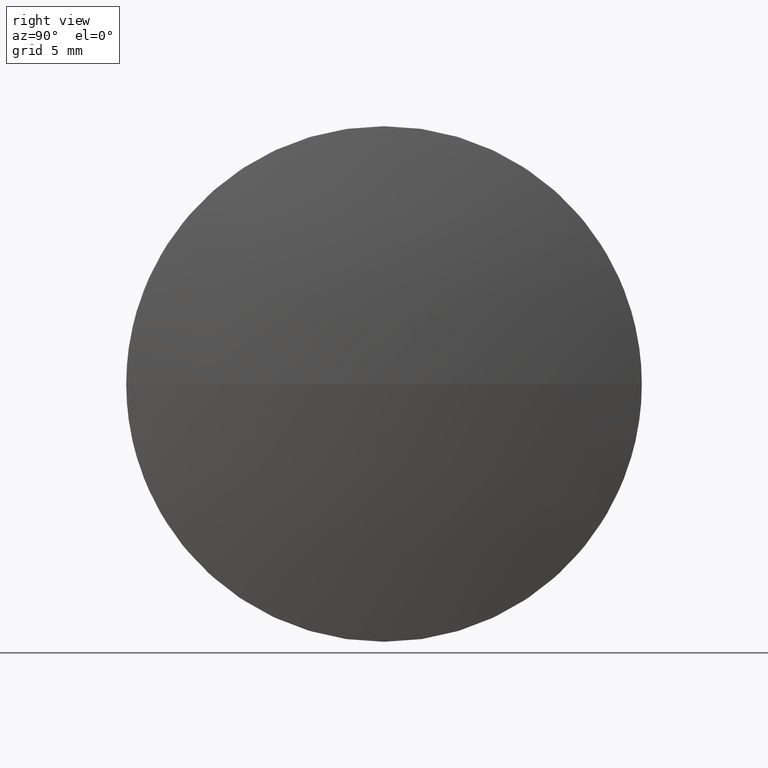
[diagram: clean part render]
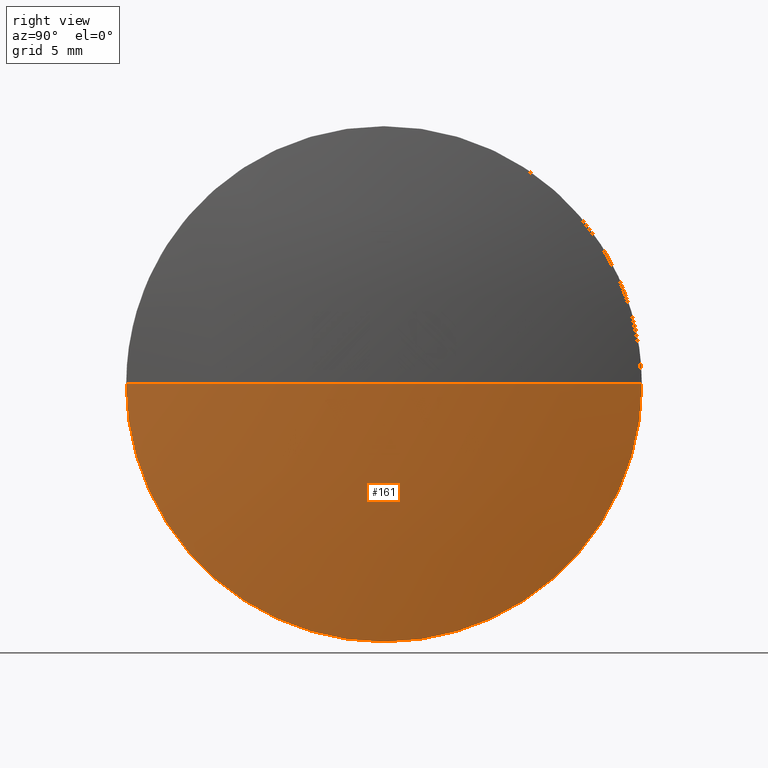
[diagram: same view with one face highlighted and labeled with its STEP entity id]
A machine part, right view. The second image highlights one B-rep face of the part: STEP entity #161.
In plain terms, the highlighted spherical surface has radius 103.539 mm.
Its self-contained STEP definition (entity closure, byte-faithful):
#3 = EDGE_LOOP ( 'NONE', ( #80, #157, #125, #52 ) ) ;
#5 = VERTEX_POINT ( 'NONE', #97 ) ;
#6 = CIRCLE ( 'NONE', #106, 20.00000000000000400 ) ;
#7 = EDGE_CURVE ( 'NONE', #5, #119, #6, .T. ) ;
#26 = DIRECTION ( 'NONE',  ( 0.0000000000000000000, 0.0000000000000000000, 1.000000000000000000 ) ) ;
#27 = DIRECTION ( 'NONE',  ( 0.0000000000000000000, 1.000000000000000000, 1.224646799147353000E-016 ) ) ;
#28 = EDGE_CURVE ( 'NONE', #119, #180, #81, .T. ) ;
#34 = EDGE_CURVE ( 'NONE', #174, #5, #37, .T. ) ;
#37 = CIRCLE ( 'NONE', #172, 103.5391025641022100 ) ;
#40 = AXIS2_PLACEMENT_3D ( 'NONE', #164, #109, #150 ) ;
#45 = CARTESIAN_POINT ( 'NONE',  ( 299.6750735635678200, 121.7145890969490300, 0.0000000000000000000 ) ) ;
#52 = ORIENTED_EDGE ( 'NONE', *, *, #7, .F. ) ;
#57 = EDGE_CURVE ( 'NONE', #174, #180, #186, .T. ) ;
#64 = AXIS2_PLACEMENT_3D ( 'NONE', #45, #118, #27 ) ;
#67 = AXIS2_PLACEMENT_3D ( 'NONE', #103, #132, #26 ) ;
#79 = CARTESIAN_POINT ( 'NONE',  ( 401.2641761276700000, 101.7145890969490300, -2.449293598294708100E-015 ) ) ;
#80 = ORIENTED_EDGE ( 'NONE', *, *, #34, .F. ) ;
#81 = CIRCLE ( 'NONE', #67, 20.00000000000000400 ) ;
#97 = CARTESIAN_POINT ( 'NONE',  ( 401.2641761276700000, 141.7145890969490600, 0.0000000000000000000 ) ) ;
#103 = CARTESIAN_POINT ( 'NONE',  ( 401.2641761276700000, 121.7145890969490300, 0.0000000000000000000 ) ) ;
#106 = AXIS2_PLACEMENT_3D ( 'NONE', #141, #178, #130 ) ;
#109 = DIRECTION ( 'NONE',  ( -0.0000000000000000000, 0.0000000000000000000, -1.000000000000000000 ) ) ;
#117 = DIRECTION ( 'NONE',  ( -0.0000000000000000000, 0.0000000000000000000, 1.000000000000000000 ) ) ;
#118 = DIRECTION ( 'NONE',  ( 0.0000000000000000000, 1.224646799147353200E-016, -1.000000000000000000 ) ) ;
#119 = VERTEX_POINT ( 'NONE', #166 ) ;
#125 = ORIENTED_EDGE ( 'NONE', *, *, #28, .F. ) ;
#130 = DIRECTION ( 'NONE',  ( 0.0000000000000000000, 0.0000000000000000000, 1.000000000000000000 ) ) ;
#131 = DIRECTION ( 'NONE',  ( 1.000000000000000000, 0.0000000000000000000, 0.0000000000000000000 ) ) ;
#132 = DIRECTION ( 'NONE',  ( -1.000000000000000000, -0.0000000000000000000, -0.0000000000000000000 ) ) ;
#141 = CARTESIAN_POINT ( 'NONE',  ( 401.2641761276700000, 121.7145890969490300, 0.0000000000000000000 ) ) ;
#145 = CARTESIAN_POINT ( 'NONE',  ( 299.6750735635678200, 121.7145890969490300, 0.0000000000000000000 ) ) ;
#150 = DIRECTION ( 'NONE',  ( 0.0000000000000000000, 1.000000000000000000, 0.0000000000000000000 ) ) ;
#157 = ORIENTED_EDGE ( 'NONE', *, *, #57, .T. ) ;
#160 = FACE_OUTER_BOUND ( 'NONE', #3, .T. ) ;
#161 = ADVANCED_FACE ( 'NONE', ( #160 ), #176, .T. ) ;
#164 = CARTESIAN_POINT ( 'NONE',  ( 299.6750735635678200, 121.7145890969490300, 0.0000000000000000000 ) ) ;
#165 = CARTESIAN_POINT ( 'NONE',  ( 403.2141761276700400, 121.7145890969490300, 0.0000000000000000000 ) ) ;
#166 = CARTESIAN_POINT ( 'NONE',  ( 401.2641761276700000, 121.7145890969490300, -20.00000000000000400 ) ) ;
#172 = AXIS2_PLACEMENT_3D ( 'NONE', #145, #117, #131 ) ;
#174 = VERTEX_POINT ( 'NONE', #165 ) ;
#176 = SPHERICAL_SURFACE ( 'NONE', #40, 103.5391025641022100 ) ;
#178 = DIRECTION ( 'NONE',  ( -1.000000000000000000, -0.0000000000000000000, -0.0000000000000000000 ) ) ;
#180 = VERTEX_POINT ( 'NONE', #79 ) ;
#186 = CIRCLE ( 'NONE', #64, 103.5391025641022200 ) ;